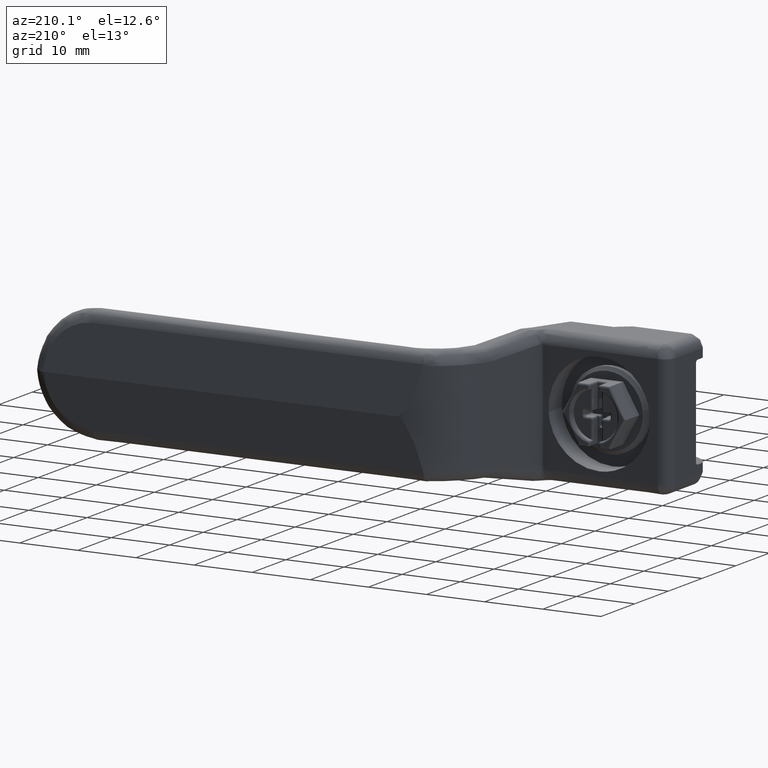
[diagram: clean part render]
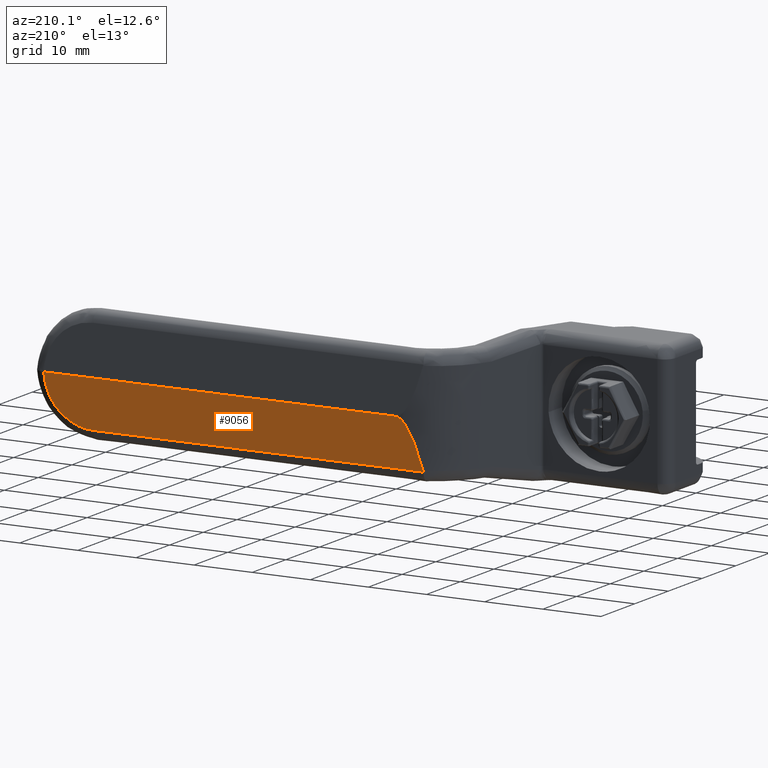
[diagram: same view with one face highlighted and labeled with its STEP entity id]
A machine part, auxiliary view. The second image highlights one B-rep face of the part: STEP entity #9056.
In plain terms, the highlighted face is a freeform B-spline surface patch.
Its self-contained STEP definition (entity closure, byte-faithful):
#7941=CARTESIAN_POINT('',(27.200001282431149,-21.191818894540550,-8.000000738483371));
#7942=VERTEX_POINT('',#7941);
#7956=CARTESIAN_POINT('',(27.180100538626899,-21.167830674714299,-8.199008176525439));
#7957=VERTEX_POINT('',#7956);
#7958=CARTESIAN_POINT('',(27.180100538626899,-21.167830674714299,-8.199008176525439));
#7959=CARTESIAN_POINT('',(27.186844598448371,-21.166569739937518,-8.131567578310774));
#7960=CARTESIAN_POINT('',(27.193474767912480,-21.174851688580802,-8.065265883670095));
#7961=CARTESIAN_POINT('',(27.200001282431149,-21.191818894540500,-8.000000738483381));
#7962=QUASI_UNIFORM_CURVE('',3,(#7958,#7959,#7960,#7961),.UNSPECIFIED.,.F.,.U.);
#7963=EDGE_CURVE('',#7957,#7942,#7962,.T.);
#8028=CARTESIAN_POINT('',(27.180100591328699,-77.999953704801300,-8.199007649507481));
#8029=VERTEX_POINT('',#8028);
#8051=CARTESIAN_POINT('',(27.180100591328699,-77.999953704801300,-8.199007649507481));
#8052=CARTESIAN_POINT('',(27.180100538626899,-21.167830674714299,-8.199008176525439));
#8053=QUASI_UNIFORM_CURVE('',1,(#8051,#8052),.UNSPECIFIED.,.F.,.U.);
#8054=EDGE_CURVE('',#8029,#7957,#8053,.T.);
#8157=CARTESIAN_POINT('',(28.000001329928750,-85.997478562465204,-0.000000263509293));
#8158=VERTEX_POINT('',#8157);
#8209=CARTESIAN_POINT('',(28.000001329928729,-85.997478562465417,-0.000000263509288));
#8210=CARTESIAN_POINT('',(27.662890301330105,-86.081363796543982,-3.371110549494659));
#8211=CARTESIAN_POINT('',(27.421495446329399,-83.726735653780338,-5.785059099501071));
#8212=CARTESIAN_POINT('',(27.180100591328685,-81.372107511016665,-8.199007649507482));
#8213=CARTESIAN_POINT('',(27.180100591328689,-77.999953704801300,-8.199007649507482));
#8221=(BOUNDED_CURVE()B_SPLINE_CURVE(2,(#8209,#8210,#8211,#8212,#8213),.UNSPECIFIED.,.F.,.U.)B_SPLINE_CURVE_WITH_KNOTS((3,2,3),(0.0,0.500000000000000,1.0),.UNSPECIFIED.)CURVE()GEOMETRIC_REPRESENTATION_ITEM()RATIONAL_B_SPLINE_CURVE((1.0,0.921481537841171,1.0,0.921481537841171,1.0))REPRESENTATION_ITEM(''));
#8222=EDGE_CURVE('',#8158,#8029,#8221,.T.);
#9026=CARTESIAN_POINT('',(27.139146518780439,-89.235729710076399,-8.608548374990070));
#9027=CARTESIAN_POINT('',(28.040955393758129,-89.235729710076399,0.409540374784394));
#9028=CARTESIAN_POINT('',(27.139146518780439,-17.929459698598532,-8.608548374990070));
#9029=CARTESIAN_POINT('',(28.040955393758129,-17.929459698598532,0.409540374784394));
#9030=B_SPLINE_SURFACE_WITH_KNOTS('',1,1,((#9026,#9028),(#9027,#9029)),.UNSPECIFIED.,.F.,.F.,.U.,(2,2),(2,2),(0.0,9.063067027546319),(0.0,71.306270011477864),.UNSPECIFIED.);
#9031=ORIENTED_EDGE('',*,*,#8054,.T.);
#9032=ORIENTED_EDGE('',*,*,#7963,.T.);
#9033=CARTESIAN_POINT('',(28.000001327486899,-25.499950857381201,-0.000000287927820));
#9034=VERTEX_POINT('',#9033);
#9035=CARTESIAN_POINT('',(27.200001282431131,-21.191818894540560,-8.000000738483351));
#9036=CARTESIAN_POINT('',(28.000001327486899,-23.271606734342946,-0.000000287927820));
#9037=CARTESIAN_POINT('',(28.000001327486899,-25.499950857381201,-0.000000287927820));
#9045=(BOUNDED_CURVE()B_SPLINE_CURVE(2,(#9035,#9036,#9037),.UNSPECIFIED.,.F.,.U.)CURVE()GEOMETRIC_REPRESENTATION_ITEM()QUASI_UNIFORM_CURVE()RATIONAL_B_SPLINE_CURVE((1.0,0.983192079295464,1.0))REPRESENTATION_ITEM(''));
#9046=EDGE_CURVE('',#7942,#9034,#9045,.T.);
#9047=ORIENTED_EDGE('',*,*,#9046,.T.);
#9048=CARTESIAN_POINT('',(28.000001327486899,-25.499950857381201,-0.000000287927820));
#9049=CARTESIAN_POINT('',(28.000001329928750,-85.997478562465204,-0.000000263509293));
#9050=QUASI_UNIFORM_CURVE('',1,(#9048,#9049),.UNSPECIFIED.,.F.,.U.);
#9051=EDGE_CURVE('',#9034,#8158,#9050,.T.);
#9052=ORIENTED_EDGE('',*,*,#9051,.T.);
#9053=ORIENTED_EDGE('',*,*,#8222,.T.);
#9054=EDGE_LOOP('',(#9031,#9032,#9047,#9052,#9053));
#9055=FACE_OUTER_BOUND('',#9054,.T.);
#9056=ADVANCED_FACE('',(#9055),#9030,.F.);